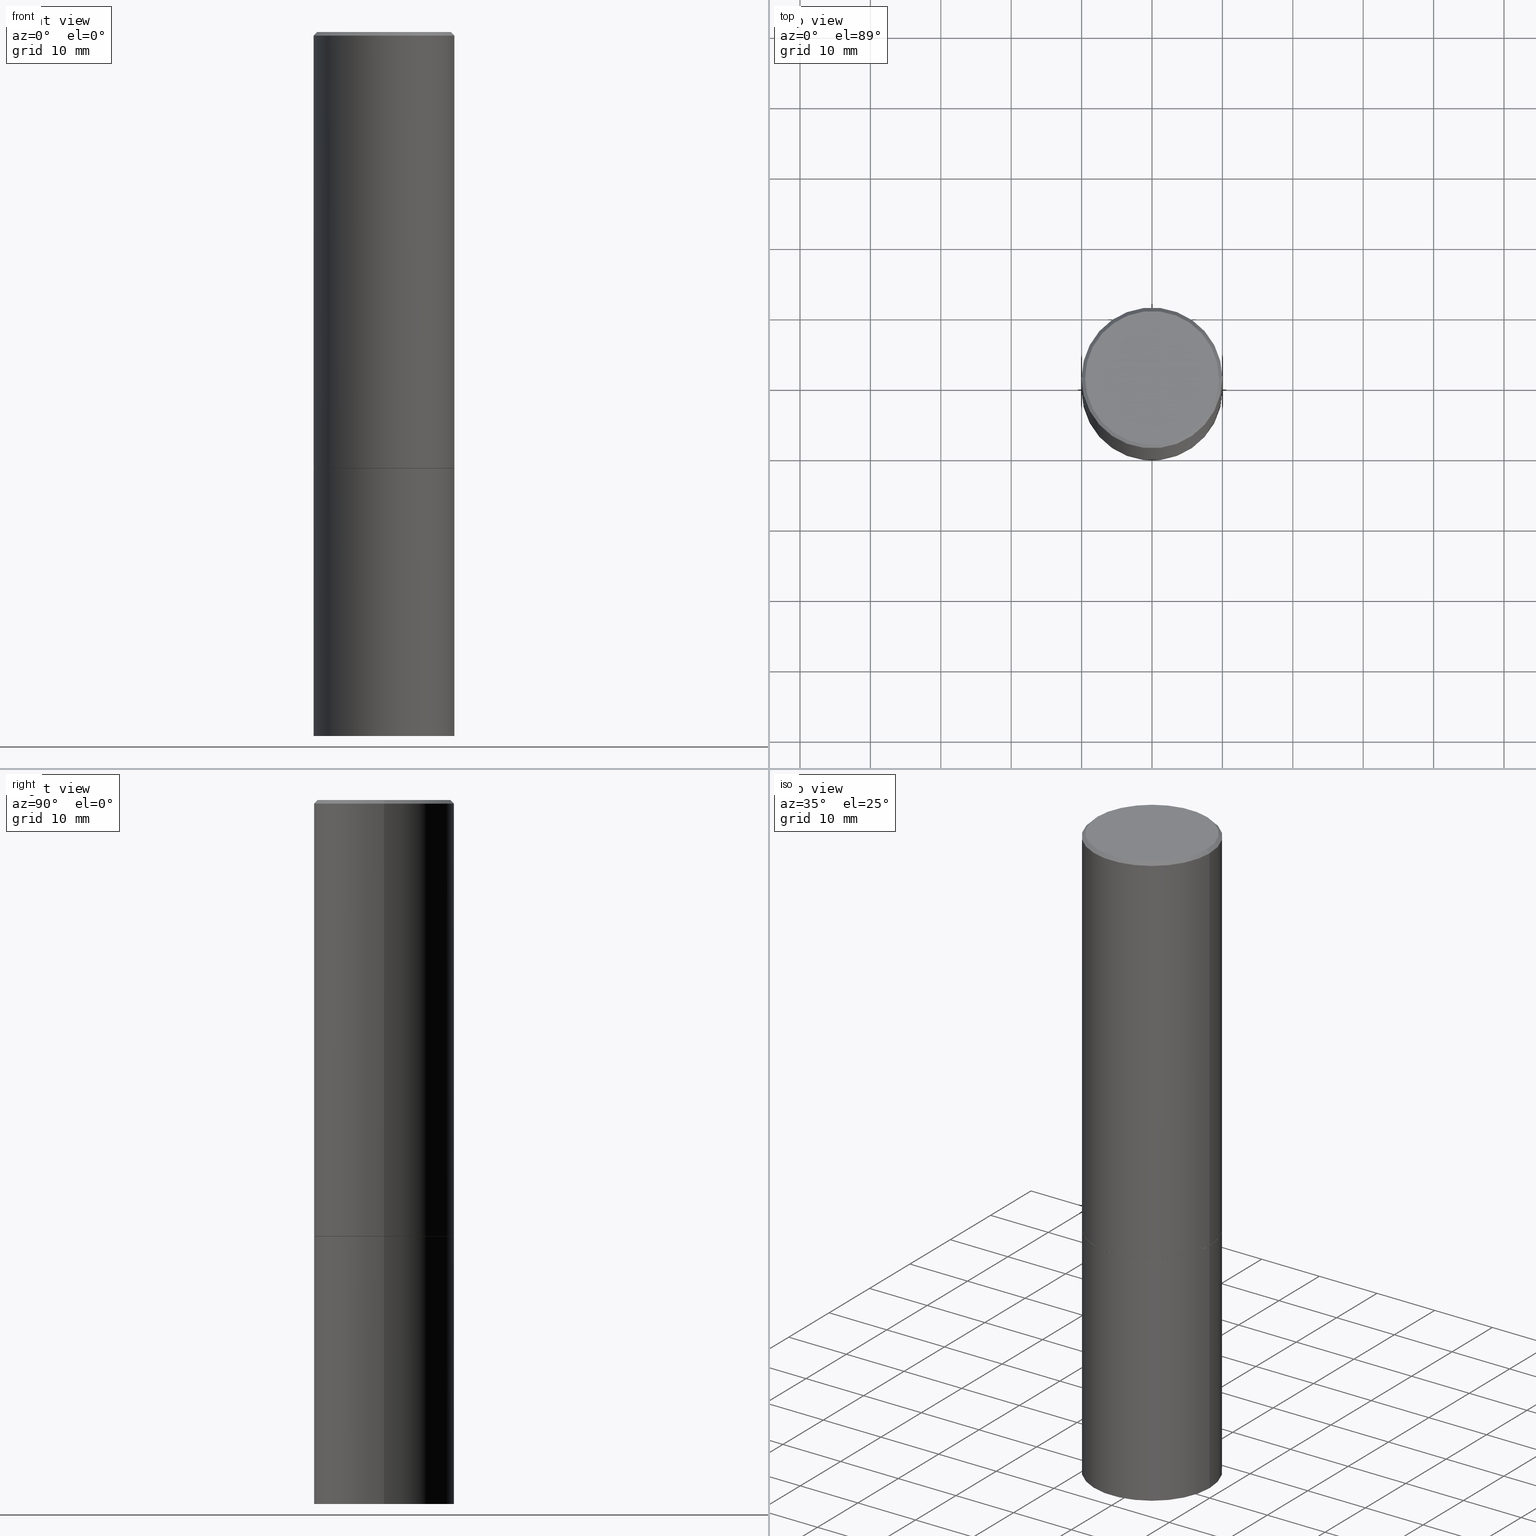
[diagram: canonical four-view strip — front | top / right | iso, engineering-drawing reading convention]
A machine part, canonical four-view strip (front | top / right | iso — engineering-drawing reading convention). The complete STEP part file that produces these views, byte-faithful:
ISO-10303-21;
HEADER;
FILE_DESCRIPTION (( 'STEP AP203' ),
    '1' );
FILE_NAME ('48818.STEP',
    '2024-02-28T15:37:53',
    ( '' ),
    ( '' ),
    'SwSTEP 2.0',
    'SolidWorks 2023',
    '' );
FILE_SCHEMA (( 'CONFIG_CONTROL_DESIGN' ));
ENDSEC;

DATA;
#1 = EDGE_CURVE ( 'NONE', #264, #202, #20, .T. ) ;
#2 = LOCAL_TIME ( 10, 37, 53.00000000000000000, #116 ) ;
#3 = ADVANCED_FACE ( 'NONE', ( #133 ), #112, .T. ) ;
#4 = DIRECTION ( 'NONE',  ( 0.7071067811864267805, -2.468850131080992517E-15, 0.7071067811866682540 ) ) ;
#5 = AXIS2_PLACEMENT_3D ( 'NONE', #167, #360, #86 ) ;
#6 = PLANE ( 'NONE',  #128 ) ;
#7 = EDGE_LOOP ( 'NONE', ( #131, #163, #12, #349 ) ) ;
#8 = DIRECTION ( 'NONE',  ( -2.445468806185136597E-29, 3.491481338843145583E-15, 1.000000000000000000 ) ) ;
#9 = EDGE_CURVE ( 'NONE', #346, #365, #58, .T. ) ;
#10 = ORIENTED_EDGE ( 'NONE', *, *, #32, .F. ) ;
#11 = CARTESIAN_POINT ( 'NONE',  ( 5.969144809017300159E-29, -8.522356799982234543E-15, -2.440900000000000070 ) ) ;
#12 = ORIENTED_EDGE ( 'NONE', *, *, #239, .F. ) ;
#13 = AXIS2_PLACEMENT_3D ( 'NONE', #226, #301, #195 ) ;
#14 = LOCAL_TIME ( 10, 37, 53.00000000000000000, #332 ) ;
#15 = FACE_OUTER_BOUND ( 'NONE', #304, .T. ) ;
#16 = VERTEX_POINT ( 'NONE', #329 ) ;
#17 = ADVANCED_FACE ( 'NONE', ( #79 ), #216, .T. ) ;
#18 = CALENDAR_DATE ( 2024, 28, 2 ) ;
#19 = DIRECTION ( 'NONE',  ( -2.445468806185136597E-29, 3.491481338843145583E-15, 1.000000000000000000 ) ) ;
#20 = LINE ( 'NONE', #197, #280 ) ;
#21 = PERSON_AND_ORGANIZATION ( #204, #118 ) ;
#22 = APPROVAL_PERSON_ORGANIZATION ( #78, #67, #267 ) ;
#23 = FACE_OUTER_BOUND ( 'NONE', #153, .T. ) ;
#24 = CARTESIAN_POINT ( 'NONE',  ( 0.3937000000000000499, -1.127154920618731776E-14, -2.440900000000000070 ) ) ;
#25 = CARTESIAN_POINT ( 'NONE',  ( -0.3937000000000000499, 2.797406750687514786E-15, -1.936584745033356735E-29 ) ) ;
#26 =( NAMED_UNIT ( * ) SI_UNIT ( $, .STERADIAN. ) SOLID_ANGLE_UNIT ( ) );
#27 = ORIENTED_EDGE ( 'NONE', *, *, #205, .T. ) ;
#28 = AXIS2_PLACEMENT_3D ( 'NONE', #109, #333, #83 ) ;
#29 = CARTESIAN_POINT ( 'NONE',  ( 0.000000000000000000, 0.000000000000000000, 0.000000000000000000 ) ) ;
#30 = MANIFOLD_SOLID_BREP ( 'Body-Move/Copy2[2]', #234 ) ;
#31 = APPROVAL_DATE_TIME ( #174, #137 ) ;
#32 = EDGE_CURVE ( 'NONE', #277, #221, #299, .T. ) ;
#33 = CIRCLE ( 'NONE', #278, 0.3937000000000000499 ) ;
#34 = CYLINDRICAL_SURFACE ( 'NONE', #314, 0.3936999999999998834 ) ;
#35 = CARTESIAN_POINT ( 'NONE',  ( 2.749192406205142776E-15, 0.3936999999999915012, -2.440900000000001402 ) ) ;
#36 = ORIENTED_EDGE ( 'NONE', *, *, #87, .F. ) ;
#37 = AXIS2_PLACEMENT_3D ( 'NONE', #82, #103, #51 ) ;
#38 = CYLINDRICAL_SURFACE ( 'NONE', #308, 0.3937000000000000499 ) ;
#39 = EDGE_CURVE ( 'NONE', #211, #142, #160, .T. ) ;
#40 = ORIENTED_EDGE ( 'NONE', *, *, #110, .F. ) ;
#41 = CARTESIAN_POINT ( 'NONE',  ( 5.966699340211115678E-29, -8.518865318643391536E-15, -2.439900000000000180 ) ) ;
#42 = UNCERTAINTY_MEASURE_WITH_UNIT (LENGTH_MEASURE( 1.000000000000000082E-05 ), #305, 'distance_accuracy_value', 'NONE');
#43 = EDGE_LOOP ( 'NONE', ( #213, #45, #242, #122 ) ) ;
#44 = LINE ( 'NONE', #260, #341 ) ;
#45 = ORIENTED_EDGE ( 'NONE', *, *, #32, .T. ) ;
#46 = CC_DESIGN_PERSON_AND_ORGANIZATION_ASSIGNMENT ( #21, #165, ( #155 ) ) ;
#47 = CC_DESIGN_APPROVAL ( #137, ( #266 ) ) ;
#48 = CARTESIAN_POINT ( 'NONE',  ( 5.969144809017300159E-29, -8.522356799982234543E-15, -2.440900000000000070 ) ) ;
#49 = EDGE_LOOP ( 'NONE', ( #240, #362, #69, #40 ) ) ;
#50 = DIRECTION ( 'NONE',  ( -2.445468806185136877E-29, 3.491481338843145188E-15, 1.000000000000000000 ) ) ;
#51 = DIRECTION ( 'NONE',  ( 1.000000000000000000, 0.000000000000000000, 0.000000000000000000 ) ) ;
#52 = APPROVAL ( #325, 'UNSPECIFIED' ) ;
#53 = CARTESIAN_POINT ( 'NONE',  ( 0.3936999999999997724, -2.770807688499513762E-15, -0.02000000000000009062 ) ) ;
#54 = CALENDAR_DATE ( 2024, 28, 2 ) ;
#55 = PRODUCT_DEFINITION_SHAPE ( 'NONE', 'NONE',  #155 ) ;
#56 = AXIS2_PLACEMENT_3D ( 'NONE', #107, #271, #228 ) ;
#57 = APPLICATION_CONTEXT ( 'configuration controlled 3d designs of mechanical parts and assemblies' ) ;
#58 = LINE ( 'NONE', #88, #89 ) ;
#59 = CARTESIAN_POINT ( 'NONE',  ( -0.3936999999999997724, 2.679362779428217946E-15, -0.02000000000000009062 ) ) ;
#60 = CALENDAR_DATE ( 2024, 28, 2 ) ;
#61 = DIRECTION ( 'NONE',  ( -2.445468806185136877E-29, 3.491481338843145188E-15, 1.000000000000000000 ) ) ;
#62 = CC_DESIGN_PERSON_AND_ORGANIZATION_ASSIGNMENT ( #276, #233, ( #185 ) ) ;
#63 = CIRCLE ( 'NONE', #70, 0.3926999999999999935 ) ;
#64 = CC_DESIGN_SECURITY_CLASSIFICATION ( #266, ( #185 ) ) ;
#65 = DIRECTION ( 'NONE',  ( 1.000000000000000000, -6.982962677686265922E-15, 4.876176775795935793E-29 ) ) ;
#66 = DIRECTION ( 'NONE',  ( -0.7071067811864267805, 7.493145998869918709E-15, 0.7071067811866682540 ) ) ;
#67 = APPROVAL ( #298, 'UNSPECIFIED' ) ;
#68 = DIRECTION ( 'NONE',  ( 1.000000000000000000, -6.982962677686267499E-15, 0.000000000000000000 ) ) ;
#69 = ORIENTED_EDGE ( 'NONE', *, *, #292, .T. ) ;
#70 = AXIS2_PLACEMENT_3D ( 'NONE', #225, #331, #306 ) ;
#71 = DIRECTION ( 'NONE',  ( -1.000000000000000000, 6.982962677686265922E-15, -4.876176775795935793E-29 ) ) ;
#72 = ORIENTED_EDGE ( 'NONE', *, *, #1, .T. ) ;
#73 = DIRECTION ( 'NONE',  ( -2.445468806185136597E-29, 3.491481338843145583E-15, 1.000000000000000000 ) ) ;
#74 = EDGE_CURVE ( 'NONE', #255, #100, #268, .T. ) ;
#75 = EDGE_LOOP ( 'NONE', ( #127, #290 ) ) ;
#76 = DATE_AND_TIME ( #254, #168 ) ;
#77 = ORIENTED_EDGE ( 'NONE', *, *, #147, .T. ) ;
#78 = PERSON_AND_ORGANIZATION ( #204, #118 ) ;
#79 = FACE_OUTER_BOUND ( 'NONE', #320, .T. ) ;
#80 = ORIENTED_EDGE ( 'NONE', *, *, #124, .T. ) ;
#81 = ADVANCED_FACE ( 'NONE', ( #23 ), #223, .T. ) ;
#82 = CARTESIAN_POINT ( 'NONE',  ( 0.000000000000000000, 0.000000000000000000, 0.000000000000000000 ) ) ;
#83 = DIRECTION ( 'NONE',  ( 1.000000000000000000, -6.982962677686266711E-15, 0.000000000000000000 ) ) ;
#84 = DIRECTION ( 'NONE',  ( 2.438088387897960049E-29, -3.491481338843145188E-15, -1.000000000000000000 ) ) ;
#85 = AXIS2_PLACEMENT_3D ( 'NONE', #345, #287, #68 ) ;
#86 = DIRECTION ( 'NONE',  ( 1.000000000000000000, -6.982962677686267499E-15, 0.000000000000000000 ) ) ;
#87 = EDGE_CURVE ( 'NONE', #100, #202, #191, .T. ) ;
#88 = CARTESIAN_POINT ( 'NONE',  ( 0.3937000000000000499, -2.749192406205083217E-15, 1.919750796630860172E-29 ) ) ;
#89 = VECTOR ( 'NONE', #61, 39.37007874015748143 ) ;
#90 = LOCAL_TIME ( 10, 37, 53.00000000000000000, #190 ) ;
#91 = AXIS2_PLACEMENT_3D ( 'NONE', #275, #358, #134 ) ;
#92 = CARTESIAN_POINT ( 'NONE',  ( -0.3926999999999999935, -5.732055476652322343E-15, -2.440900000000000514 ) ) ;
#93 = EDGE_CURVE ( 'NONE', #142, #211, #63, .T. ) ;
#94 = ORIENTED_EDGE ( 'NONE', *, *, #208, .F. ) ;
#95 = CYLINDRICAL_SURFACE ( 'NONE', #217, 0.3937000000000000499 ) ;
#96 = ORIENTED_EDGE ( 'NONE', *, *, #205, .F. ) ;
#97 = FACE_OUTER_BOUND ( 'NONE', #293, .T. ) ;
#98 = ORIENTED_EDGE ( 'NONE', *, *, #108, .F. ) ;
#99 = PLANE ( 'NONE',  #259 ) ;
#100 = VERTEX_POINT ( 'NONE', #53 ) ;
#101 = CARTESIAN_POINT ( 'NONE',  ( -0.3937000000000000499, -8.336752664816334981E-15, -3.937000000000000277 ) ) ;
#102 = ORIENTED_EDGE ( 'NONE', *, *, #93, .T. ) ;
#103 = DIRECTION ( 'NONE',  ( 0.000000000000000000, 0.000000000000000000, 1.000000000000000000 ) ) ;
#104 = EDGE_LOOP ( 'NONE', ( #318, #27 ) ) ;
#105 = CIRCLE ( 'NONE', #175, 0.3937000000000000499 ) ;
#106 = DIRECTION ( 'NONE',  ( -1.000000000000000000, 6.982962677686265922E-15, -4.876176775795935793E-29 ) ) ;
#107 = CARTESIAN_POINT ( 'NONE',  ( 4.890937612370295054E-31, -6.982962677686322424E-17, -0.02000000000000009062 ) ) ;
#108 = EDGE_CURVE ( 'NONE', #346, #277, #270, .T. ) ;
#109 = CARTESIAN_POINT ( 'NONE',  ( 4.890937612370295054E-31, -6.982962677686322424E-17, -0.02000000000000009062 ) ) ;
#110 = EDGE_CURVE ( 'NONE', #202, #100, #281, .T. ) ;
#111 = PERSON_AND_ORGANIZATION ( #204, #118 ) ;
#112 = CYLINDRICAL_SURFACE ( 'NONE', #180, 0.3936999999999998834 ) ;
#113 = APPROVAL_PERSON_ORGANIZATION ( #307, #137, #203 ) ;
#114 = ORIENTED_EDGE ( 'NONE', *, *, #292, .F. ) ;
#115 = EDGE_CURVE ( 'NONE', #285, #202, #199, .T. ) ;
#116 = COORDINATED_UNIVERSAL_TIME_OFFSET ( 5, 0, .BEHIND. ) ;
#117 = ADVANCED_FACE ( 'NONE', ( #178 ), #161, .T. ) ;
#118 = ORGANIZATION ( 'UNSPECIFIED', 'UNSPECIFIED', '' ) ;
#119 = DIRECTION ( 'NONE',  ( -1.000000000000000000, 6.982962677686265922E-15, -4.876176775795935793E-29 ) ) ;
#120 = CC_DESIGN_PERSON_AND_ORGANIZATION_ASSIGNMENT ( #272, #248, ( #363 ) ) ;
#121 = CARTESIAN_POINT ( 'NONE',  ( -0.3926999999999999935, -5.726757022304099152E-15, -2.440900000000000514 ) ) ;
#122 = ORIENTED_EDGE ( 'NONE', *, *, #9, .F. ) ;
#123 = DIRECTION ( 'NONE',  ( 1.000000000000000000, -6.982962677686265133E-15, 0.000000000000000000 ) ) ;
#124 = EDGE_CURVE ( 'NONE', #277, #346, #296, .T. ) ;
#125 = DIRECTION ( 'NONE',  ( -2.445468806185136597E-29, 3.491481338843145583E-15, 1.000000000000000000 ) ) ;
#126 = CLOSED_SHELL ( 'NONE', ( #222, #340, #257, #177 ) ) ;
#127 = ORIENTED_EDGE ( 'NONE', *, *, #39, .F. ) ;
#128 = AXIS2_PLACEMENT_3D ( 'NONE', #129, #183, #119 ) ;
#129 = CARTESIAN_POINT ( 'NONE',  ( 2.609533152651355437E-15, 0.3736999999999996991, -1.302632320080632238E-15 ) ) ;
#130 = ORIENTED_EDGE ( 'NONE', *, *, #87, .T. ) ;
#131 = ORIENTED_EDGE ( 'NONE', *, *, #39, .T. ) ;
#132 = ADVANCED_FACE ( 'NONE', ( #246 ), #338, .T. ) ;
#133 = FACE_OUTER_BOUND ( 'NONE', #49, .T. ) ;
#134 = DIRECTION ( 'NONE',  ( -1.000000000000000000, 6.982962677686266711E-15, 0.000000000000000000 ) ) ;
#135 = MECHANICAL_CONTEXT ( 'NONE', #57, 'mechanical' ) ;
#136 = CARTESIAN_POINT ( 'NONE',  ( 0.3936999999999997724, -2.770807688499513762E-15, -0.02000000000000009062 ) ) ;
#137 = APPROVAL ( #309, 'UNSPECIFIED' ) ;
#138 = APPROVAL_ROLE ( '' ) ;
#139 = CIRCLE ( 'NONE', #286, 0.3937000000000000499 ) ;
#140 = SECURITY_CLASSIFICATION_LEVEL ( 'unclassified' ) ;
#141 = AXIS2_PLACEMENT_3D ( 'NONE', #348, #263, #238 ) ;
#142 = VERTEX_POINT ( 'NONE', #121 ) ;
#143 = PERSON_AND_ORGANIZATION_ROLE ( 'classification_officer' ) ;
#144 = DESIGN_CONTEXT ( 'detailed design', #214, 'design' ) ;
#145 = DIRECTION ( 'NONE',  ( -2.445468806185136597E-29, 3.491481338843145583E-15, 1.000000000000000000 ) ) ;
#146 = VECTOR ( 'NONE', #66, 39.37007874015748143 ) ;
#147 = EDGE_CURVE ( 'NONE', #285, #255, #256, .T. ) ;
#148 = ADVANCED_FACE ( 'NONE', ( #15 ), #34, .T. ) ;
#149 = CARTESIAN_POINT ( 'NONE',  ( 0.000000000000000000, 0.000000000000000000, 0.000000000000000000 ) ) ;
#150 = EDGE_CURVE ( 'NONE', #142, #264, #159, .T. ) ;
#151 = CARTESIAN_POINT ( 'NONE',  ( -1.043851414335219820E-46, 1.490343170380447200E-32, 4.268512490100411279E-18 ) ) ;
#152 = AXIS2_PLACEMENT_3D ( 'NONE', #35, #322, #71 ) ;
#153 = EDGE_LOOP ( 'NONE', ( #351, #355, #130, #186 ) ) ;
#154 = DIRECTION ( 'NONE',  ( 1.000000000000000000, -6.982962677686265922E-15, 4.876176775795935793E-29 ) ) ;
#155 = PRODUCT_DEFINITION ( 'UNKNOWN', '', #185, #144 ) ;
#156 = EDGE_LOOP ( 'NONE', ( #98, #326 ) ) ;
#157 = CARTESIAN_POINT ( 'NONE',  ( 0.000000000000000000, 0.000000000000000000, 0.000000000000000000 ) ) ;
#158 = ORIENTED_EDGE ( 'NONE', *, *, #239, .T. ) ;
#159 = LINE ( 'NONE', #92, #146 ) ;
#160 = CIRCLE ( 'NONE', #207, 0.3926999999999999935 ) ;
#161 = CONICAL_SURFACE ( 'NONE', #229, 0.3926999999999999935, 0.7853981633972775267 ) ;
#162 = CARTESIAN_POINT ( 'NONE',  ( 0.3937000000000000499, -1.649515443723054663E-14, -3.937000000000000277 ) ) ;
#163 = ORIENTED_EDGE ( 'NONE', *, *, #150, .T. ) ;
#164 = ADVANCED_FACE ( 'NONE', ( #241 ), #6, .F. ) ;
#165 = PERSON_AND_ORGANIZATION_ROLE ( 'creator' ) ;
#166 = DIRECTION ( 'NONE',  ( 1.000000000000000000, -6.982962677686268288E-15, 0.000000000000000000 ) ) ;
#167 = CARTESIAN_POINT ( 'NONE',  ( 9.627810689950883669E-29, -1.374596203102546341E-14, -3.937000000000000277 ) ) ;
#168 = LOCAL_TIME ( 10, 37, 53.00000000000000000, #300 ) ;
#169 =( LENGTH_UNIT ( ) NAMED_UNIT ( * ) SI_UNIT ( $, .METRE. ) );
#170 = PRODUCT_RELATED_PRODUCT_CATEGORY ( 'detail', '', ( #363 ) ) ;
#171 = APPLICATION_PROTOCOL_DEFINITION ( 'international standard', 'config_control_design', 1994, #57 ) ;
#172 = ADVANCED_FACE ( 'NONE', ( #352 ), #99, .F. ) ;
#173 = DIRECTION ( 'NONE',  ( -0.7071067811865469066, 2.468850131082250355E-15, -0.7071067811865481278 ) ) ;
#174 = DATE_AND_TIME ( #60, #364 ) ;
#175 = AXIS2_PLACEMENT_3D ( 'NONE', #41, #73, #212 ) ;
#176 = DATE_AND_TIME ( #201, #2 ) ;
#177 = ADVANCED_FACE ( 'NONE', ( #97 ), #95, .T. ) ;
#178 = FACE_OUTER_BOUND ( 'NONE', #7, .T. ) ;
#179 = PERSON_AND_ORGANIZATION ( #204, #118 ) ;
#180 = AXIS2_PLACEMENT_3D ( 'NONE', #29, #232, #224 ) ;
#181 = AXIS2_PLACEMENT_3D ( 'NONE', #209, #343, #291 ) ;
#182 = DIRECTION ( 'NONE',  ( 1.000000000000000000, -6.982962677686265922E-15, 4.876176775795935793E-29 ) ) ;
#183 = DIRECTION ( 'NONE',  ( 2.438088387897960049E-29, -3.491481338843145188E-15, -1.000000000000000000 ) ) ;
#184 = CARTESIAN_POINT ( 'NONE',  ( -0.3937000000000000499, -8.336752664816334981E-15, -2.440900000000000070 ) ) ;
#185 = PRODUCT_DEFINITION_FORMATION_WITH_SPECIFIED_SOURCE ( 'ANY', '', #363, .NOT_KNOWN. ) ;
#186 = ORIENTED_EDGE ( 'NONE', *, *, #115, .F. ) ;
#187 = CARTESIAN_POINT ( 'NONE',  ( -1.043851414335219820E-46, 1.490343170380447200E-32, 4.268512490100411279E-18 ) ) ;
#188 = DIRECTION ( 'NONE',  ( 1.000000000000000000, -6.982962677686266711E-15, 4.876176775795935793E-29 ) ) ;
#189 = ORIENTED_EDGE ( 'NONE', *, *, #9, .T. ) ;
#190 = COORDINATED_UNIVERSAL_TIME_OFFSET ( 5, 0, .BEHIND. ) ;
#191 = CIRCLE ( 'NONE', #56, 0.3936999999999997724 ) ;
#192 =( GEOMETRIC_REPRESENTATION_CONTEXT ( 3 ) GLOBAL_UNCERTAINTY_ASSIGNED_CONTEXT ( ( #42 ) ) GLOBAL_UNIT_ASSIGNED_CONTEXT ( ( #305, #274, #26 ) ) REPRESENTATION_CONTEXT ( 'NONE', 'WORKASPACE' ) );
#193 = ORIENTED_EDGE ( 'NONE', *, *, #74, .F. ) ;
#194 = CARTESIAN_POINT ( 'NONE',  ( -0.3736999999999996991, 2.644447966039787086E-15, 4.268512490082039448E-18 ) ) ;
#195 = DIRECTION ( 'NONE',  ( -1.000000000000000000, 6.982962677686266711E-15, 0.000000000000000000 ) ) ;
#196 = DIRECTION ( 'NONE',  ( -2.445468806185136877E-29, 3.491481338843145188E-15, 1.000000000000000000 ) ) ;
#197 = CARTESIAN_POINT ( 'NONE',  ( -0.3936999999999998834, 2.797406750687513603E-15, -1.936584745033355895E-29 ) ) ;
#198 = FACE_OUTER_BOUND ( 'NONE', #156, .T. ) ;
#199 = LINE ( 'NONE', #59, #328 ) ;
#200 = AXIS2_PLACEMENT_3D ( 'NONE', #356, #84, #106 ) ;
#201 = CALENDAR_DATE ( 2024, 28, 2 ) ;
#202 = VERTEX_POINT ( 'NONE', #283 ) ;
#203 = APPROVAL_ROLE ( '' ) ;
#204 = PERSON ( 'UNSPECIFIED', 'UNSPECIFIED', 'UNSPECIFIED', ('UNSPECIFIED'), ('UNSPECIFIED'), ('UNSPECIFIED') ) ;
#205 = EDGE_CURVE ( 'NONE', #221, #365, #303, .T. ) ;
#206 = AXIS2_PLACEMENT_3D ( 'NONE', #187, #289, #219 ) ;
#207 = AXIS2_PLACEMENT_3D ( 'NONE', #252, #253, #166 ) ;
#208 = EDGE_CURVE ( 'NONE', #264, #16, #105, .T. ) ;
#209 = CARTESIAN_POINT ( 'NONE',  ( 9.627810689950883669E-29, -1.374596203102546341E-14, -3.937000000000000277 ) ) ;
#210 = DIRECTION ( 'NONE',  ( -2.445468806185136597E-29, 3.491481338843145583E-15, 1.000000000000000000 ) ) ;
#211 = VERTEX_POINT ( 'NONE', #319 ) ;
#212 = DIRECTION ( 'NONE',  ( 1.000000000000000000, -6.982962677686265133E-15, 0.000000000000000000 ) ) ;
#213 = ORIENTED_EDGE ( 'NONE', *, *, #108, .T. ) ;
#214 = APPLICATION_CONTEXT ( 'configuration controlled 3d designs of mechanical parts and assemblies' ) ;
#215 = PLANE ( 'NONE',  #152 ) ;
#216 = CONICAL_SURFACE ( 'NONE', #13, 0.3936999999999997724, 0.7853981633974473908 ) ;
#217 = AXIS2_PLACEMENT_3D ( 'NONE', #157, #243, #182 ) ;
#218 = ORIENTED_EDGE ( 'NONE', *, *, #115, .T. ) ;
#219 = DIRECTION ( 'NONE',  ( 1.000000000000000000, -6.982962677686266711E-15, 4.876212485538979042E-29 ) ) ;
#220 = EDGE_CURVE ( 'NONE', #211, #16, #44, .T. ) ;
#221 = VERTEX_POINT ( 'NONE', #184 ) ;
#222 = ADVANCED_FACE ( 'NONE', ( #237 ), #38, .T. ) ;
#223 = CONICAL_SURFACE ( 'NONE', #91, 0.3936999999999997724, 0.7853981633974473908 ) ;
#224 = DIRECTION ( 'NONE',  ( 1.000000000000000000, -6.982962677686266711E-15, 4.876176775795935793E-29 ) ) ;
#225 = CARTESIAN_POINT ( 'NONE',  ( 5.969144809017301280E-29, -8.522356799982236121E-15, -2.440900000000000514 ) ) ;
#226 = CARTESIAN_POINT ( 'NONE',  ( 4.890937612370295054E-31, -6.982962677686322424E-17, -0.02000000000000009062 ) ) ;
#227 = APPROVAL_DATE_TIME ( #76, #52 ) ;
#228 = DIRECTION ( 'NONE',  ( 1.000000000000000000, -6.982962677686266711E-15, 0.000000000000000000 ) ) ;
#229 = AXIS2_PLACEMENT_3D ( 'NONE', #279, #145, #311 ) ;
#230 = COORDINATED_UNIVERSAL_TIME_OFFSET ( 5, 0, .BEHIND. ) ;
#231 = DIMENSIONAL_EXPONENTS ( 1.000000000000000000, 0.000000000000000000, 0.000000000000000000, 0.000000000000000000, 0.000000000000000000, 0.000000000000000000, 0.000000000000000000 ) ;
#232 = DIRECTION ( 'NONE',  ( -2.445468806185136597E-29, 3.491481338843145583E-15, 1.000000000000000000 ) ) ;
#233 = PERSON_AND_ORGANIZATION_ROLE ( 'creator' ) ;
#234 = CLOSED_SHELL ( 'NONE', ( #117, #148, #81, #17, #3, #132, #172, #164 ) ) ;
#235 = CC_DESIGN_APPROVAL ( #67, ( #185 ) ) ;
#236 = CC_DESIGN_PERSON_AND_ORGANIZATION_ASSIGNMENT ( #310, #335, ( #185 ) ) ;
#237 = FACE_OUTER_BOUND ( 'NONE', #43, .T. ) ;
#238 = DIRECTION ( 'NONE',  ( 1.000000000000000000, -6.982962677686268288E-15, 0.000000000000000000 ) ) ;
#239 = EDGE_CURVE ( 'NONE', #16, #264, #33, .T. ) ;
#240 = ORIENTED_EDGE ( 'NONE', *, *, #1, .F. ) ;
#241 = FACE_OUTER_BOUND ( 'NONE', #297, .T. ) ;
#242 = ORIENTED_EDGE ( 'NONE', *, *, #316, .F. ) ;
#243 = DIRECTION ( 'NONE',  ( -2.445468806185136597E-29, 3.491481338843145583E-15, 1.000000000000000000 ) ) ;
#244 = CC_DESIGN_APPROVAL ( #52, ( #155 ) ) ;
#245 = ORIENTED_EDGE ( 'NONE', *, *, #150, .F. ) ;
#246 = FACE_OUTER_BOUND ( 'NONE', #288, .T. ) ;
#247 = ORIENTED_EDGE ( 'NONE', *, *, #220, .T. ) ;
#248 = PERSON_AND_ORGANIZATION_ROLE ( 'design_owner' ) ;
#249 = DIRECTION ( 'NONE',  ( 1.000000000000000000, -6.982962677686267499E-15, 0.000000000000000000 ) ) ;
#250 = APPROVAL_PERSON_ORGANIZATION ( #111, #52, #138 ) ;
#251 = DIRECTION ( 'NONE',  ( 0.7071067811865469066, -7.319954787623254468E-15, -0.7071067811865481278 ) ) ;
#252 = CARTESIAN_POINT ( 'NONE',  ( 5.969144809017301280E-29, -8.522356799982236121E-15, -2.440900000000000514 ) ) ;
#253 = DIRECTION ( 'NONE',  ( -2.445468806185136597E-29, 3.491481338843145583E-15, 1.000000000000000000 ) ) ;
#254 = CALENDAR_DATE ( 2024, 28, 2 ) ;
#255 = VERTEX_POINT ( 'NONE', #284 ) ;
#256 = CIRCLE ( 'NONE', #321, 0.3736999999999996991 ) ;
#257 = ADVANCED_FACE ( 'NONE', ( #350 ), #215, .F. ) ;
#258 = EDGE_CURVE ( 'NONE', #255, #285, #342, .T. ) ;
#259 = AXIS2_PLACEMENT_3D ( 'NONE', #11, #262, #65 ) ;
#260 = CARTESIAN_POINT ( 'NONE',  ( 0.3926999999999999935, -1.126456624350963332E-14, -2.440900000000000514 ) ) ;
#261 = DIRECTION ( 'NONE',  ( 1.000000000000000000, -6.982962677686266711E-15, 4.876212485538979042E-29 ) ) ;
#262 = DIRECTION ( 'NONE',  ( -2.438088387897960049E-29, 3.491481338843145188E-15, 1.000000000000000000 ) ) ;
#263 = DIRECTION ( 'NONE',  ( -2.445468806185136597E-29, 3.491481338843145583E-15, 1.000000000000000000 ) ) ;
#264 = VERTEX_POINT ( 'NONE', #324 ) ;
#265 = CARTESIAN_POINT ( 'NONE',  ( 0.000000000000000000, 0.000000000000000000, 0.000000000000000000 ) ) ;
#266 = SECURITY_CLASSIFICATION ( '', '', #140 ) ;
#267 = APPROVAL_ROLE ( '' ) ;
#268 = LINE ( 'NONE', #136, #295 ) ;
#269 = MANIFOLD_SOLID_BREP ( 'Body-Move/Copy2[1]', #126 ) ;
#270 = CIRCLE ( 'NONE', #5, 0.3937000000000000499 ) ;
#271 = DIRECTION ( 'NONE',  ( -2.445468806185136597E-29, 3.491481338843145583E-15, 1.000000000000000000 ) ) ;
#272 = PERSON_AND_ORGANIZATION ( #204, #118 ) ;
#273 = ORIENTED_EDGE ( 'NONE', *, *, #110, .T. ) ;
#274 =( NAMED_UNIT ( * ) PLANE_ANGLE_UNIT ( ) SI_UNIT ( $, .RADIAN. ) );
#275 = CARTESIAN_POINT ( 'NONE',  ( 4.890937612370295054E-31, -6.982962677686322424E-17, -0.02000000000000009062 ) ) ;
#276 = PERSON_AND_ORGANIZATION ( #204, #118 ) ;
#277 = VERTEX_POINT ( 'NONE', #101 ) ;
#278 = AXIS2_PLACEMENT_3D ( 'NONE', #317, #8, #123 ) ;
#279 = CARTESIAN_POINT ( 'NONE',  ( 5.969144809017301280E-29, -8.522356799982236121E-15, -2.440900000000000514 ) ) ;
#280 = VECTOR ( 'NONE', #336, 39.37007874015748143 ) ;
#281 = CIRCLE ( 'NONE', #28, 0.3936999999999997724 ) ;
#282 = DATE_TIME_ROLE ( 'classification_date' ) ;
#283 = CARTESIAN_POINT ( 'NONE',  ( -0.3936999999999997724, 2.679362779428217946E-15, -0.02000000000000009062 ) ) ;
#284 = CARTESIAN_POINT ( 'NONE',  ( 0.3736999999999996991, -2.667287895133366387E-15, 4.268512490118863228E-18 ) ) ;
#285 = VERTEX_POINT ( 'NONE', #194 ) ;
#286 = AXIS2_PLACEMENT_3D ( 'NONE', #48, #19, #249 ) ;
#287 = DIRECTION ( 'NONE',  ( -2.445468806185136597E-29, 3.491481338843145583E-15, 1.000000000000000000 ) ) ;
#288 = EDGE_LOOP ( 'NONE', ( #245, #102, #247, #94 ) ) ;
#289 = DIRECTION ( 'NONE',  ( -2.445468806185136597E-29, 3.491481338843145583E-15, 1.000000000000000000 ) ) ;
#290 = ORIENTED_EDGE ( 'NONE', *, *, #93, .F. ) ;
#291 = DIRECTION ( 'NONE',  ( 1.000000000000000000, -6.982962677686267499E-15, 0.000000000000000000 ) ) ;
#292 = EDGE_CURVE ( 'NONE', #16, #100, #359, .T. ) ;
#293 = EDGE_LOOP ( 'NONE', ( #10, #80, #189, #96 ) ) ;
#294 = APPLICATION_PROTOCOL_DEFINITION ( 'international standard', 'config_control_design', 1994, #214 ) ;
#295 = VECTOR ( 'NONE', #251, 39.37007874015748143 ) ;
#296 = CIRCLE ( 'NONE', #181, 0.3937000000000000499 ) ;
#297 = EDGE_LOOP ( 'NONE', ( #77, #334 ) ) ;
#298 = APPROVAL_STATUS ( 'not_yet_approved' ) ;
#299 = LINE ( 'NONE', #25, #313 ) ;
#300 = COORDINATED_UNIVERSAL_TIME_OFFSET ( 5, 0, .BEHIND. ) ;
#301 = DIRECTION ( 'NONE',  ( 2.445468806185136597E-29, -3.491481338843145583E-15, -1.000000000000000000 ) ) ;
#302 = CARTESIAN_POINT ( 'NONE',  ( 0.3936999999999998834, -2.749192406205082428E-15, 1.919750796630859331E-29 ) ) ;
#303 = CIRCLE ( 'NONE', #85, 0.3937000000000000499 ) ;
#304 = EDGE_LOOP ( 'NONE', ( #158, #72, #36, #114 ) ) ;
#305 =( CONVERSION_BASED_UNIT ( 'INCH', #361 ) LENGTH_UNIT ( ) NAMED_UNIT ( #231 ) );
#306 = DIRECTION ( 'NONE',  ( 1.000000000000000000, -6.982962677686268288E-15, 0.000000000000000000 ) ) ;
#307 = PERSON_AND_ORGANIZATION ( #204, #118 ) ;
#308 = AXIS2_PLACEMENT_3D ( 'NONE', #265, #210, #154 ) ;
#309 = APPROVAL_STATUS ( 'not_yet_approved' ) ;
#310 = PERSON_AND_ORGANIZATION ( #204, #118 ) ;
#311 = DIRECTION ( 'NONE',  ( 1.000000000000000000, -6.982962677686268288E-15, 0.000000000000000000 ) ) ;
#312 = DATE_AND_TIME ( #54, #14 ) ;
#313 = VECTOR ( 'NONE', #50, 39.37007874015748143 ) ;
#314 = AXIS2_PLACEMENT_3D ( 'NONE', #149, #315, #188 ) ;
#315 = DIRECTION ( 'NONE',  ( -2.445468806185136597E-29, 3.491481338843145583E-15, 1.000000000000000000 ) ) ;
#316 = EDGE_CURVE ( 'NONE', #365, #221, #139, .T. ) ;
#317 = CARTESIAN_POINT ( 'NONE',  ( 5.966699340211115678E-29, -8.518865318643391536E-15, -2.439900000000000180 ) ) ;
#318 = ORIENTED_EDGE ( 'NONE', *, *, #316, .T. ) ;
#319 = CARTESIAN_POINT ( 'NONE',  ( 0.3926999999999999935, -1.126456624350963332E-14, -2.440900000000000514 ) ) ;
#320 = EDGE_LOOP ( 'NONE', ( #193, #323, #218, #273 ) ) ;
#321 = AXIS2_PLACEMENT_3D ( 'NONE', #151, #125, #261 ) ;
#322 = DIRECTION ( 'NONE',  ( 2.438088387897960049E-29, -3.491481338843145188E-15, -1.000000000000000000 ) ) ;
#323 = ORIENTED_EDGE ( 'NONE', *, *, #147, .F. ) ;
#324 = CARTESIAN_POINT ( 'NONE',  ( -0.3937000000000001054, -1.496940722022610659E-15, -2.439900000000000180 ) ) ;
#325 = APPROVAL_STATUS ( 'not_yet_approved' ) ;
#326 = ORIENTED_EDGE ( 'NONE', *, *, #124, .F. ) ;
#327 = DATE_AND_TIME ( #18, #90 ) ;
#328 = VECTOR ( 'NONE', #173, 39.37007874015748143 ) ;
#329 = CARTESIAN_POINT ( 'NONE',  ( 0.3937000000000000499, -1.126805772484847318E-14, -2.439900000000000180 ) ) ;
#330 = DATE_TIME_ROLE ( 'creation_date' ) ;
#331 = DIRECTION ( 'NONE',  ( -2.445468806185136597E-29, 3.491481338843145583E-15, 1.000000000000000000 ) ) ;
#332 = COORDINATED_UNIVERSAL_TIME_OFFSET ( 5, 0, .BEHIND. ) ;
#333 = DIRECTION ( 'NONE',  ( -2.445468806185136597E-29, 3.491481338843145583E-15, 1.000000000000000000 ) ) ;
#334 = ORIENTED_EDGE ( 'NONE', *, *, #258, .T. ) ;
#335 = PERSON_AND_ORGANIZATION_ROLE ( 'design_supplier' ) ;
#336 = DIRECTION ( 'NONE',  ( -2.445468806185136877E-29, 3.491481338843145188E-15, 1.000000000000000000 ) ) ;
#337 = SHAPE_DEFINITION_REPRESENTATION ( #55, #344 ) ;
#338 = CONICAL_SURFACE ( 'NONE', #141, 0.3926999999999999935, 0.7853981633972775267 ) ;
#339 = CC_DESIGN_DATE_AND_TIME_ASSIGNMENT ( #327, #330, ( #155 ) ) ;
#340 = ADVANCED_FACE ( 'NONE', ( #198 ), #353, .T. ) ;
#341 = VECTOR ( 'NONE', #4, 39.37007874015748143 ) ;
#342 = CIRCLE ( 'NONE', #206, 0.3736999999999996991 ) ;
#343 = DIRECTION ( 'NONE',  ( -2.445468806185136597E-29, 3.491481338843145583E-15, 1.000000000000000000 ) ) ;
#344 = ADVANCED_BREP_SHAPE_REPRESENTATION ( '48818', ( #269, #30, #37 ), #192 ) ;
#345 = CARTESIAN_POINT ( 'NONE',  ( 5.969144809017300159E-29, -8.522356799982234543E-15, -2.440900000000000070 ) ) ;
#346 = VERTEX_POINT ( 'NONE', #162 ) ;
#347 = CC_DESIGN_PERSON_AND_ORGANIZATION_ASSIGNMENT ( #179, #143, ( #266 ) ) ;
#348 = CARTESIAN_POINT ( 'NONE',  ( 5.969144809017301280E-29, -8.522356799982236121E-15, -2.440900000000000514 ) ) ;
#349 = ORIENTED_EDGE ( 'NONE', *, *, #220, .F. ) ;
#350 = FACE_OUTER_BOUND ( 'NONE', #104, .T. ) ;
#351 = ORIENTED_EDGE ( 'NONE', *, *, #258, .F. ) ;
#352 = FACE_OUTER_BOUND ( 'NONE', #75, .T. ) ;
#353 = PLANE ( 'NONE',  #200 ) ;
#354 = CC_DESIGN_DATE_AND_TIME_ASSIGNMENT ( #176, #282, ( #266 ) ) ;
#355 = ORIENTED_EDGE ( 'NONE', *, *, #74, .T. ) ;
#356 = CARTESIAN_POINT ( 'NONE',  ( 2.749192406205179063E-15, 0.3936999999999862832, -3.937000000000001609 ) ) ;
#357 = VECTOR ( 'NONE', #196, 39.37007874015748143 ) ;
#358 = DIRECTION ( 'NONE',  ( 2.445468806185136597E-29, -3.491481338843145583E-15, -1.000000000000000000 ) ) ;
#359 = LINE ( 'NONE', #302, #357 ) ;
#360 = DIRECTION ( 'NONE',  ( -2.445468806185136597E-29, 3.491481338843145583E-15, 1.000000000000000000 ) ) ;
#361 = LENGTH_MEASURE_WITH_UNIT ( LENGTH_MEASURE( 0.02539999999999999897 ), #169 );
#362 = ORIENTED_EDGE ( 'NONE', *, *, #208, .T. ) ;
#363 = PRODUCT ( '48818', '48818', '', ( #135 ) ) ;
#364 = LOCAL_TIME ( 10, 37, 53.00000000000000000, #230 ) ;
#365 = VERTEX_POINT ( 'NONE', #24 ) ;
#366 = APPROVAL_DATE_TIME ( #312, #67 ) ;
ENDSEC;
END-ISO-10303-21;
